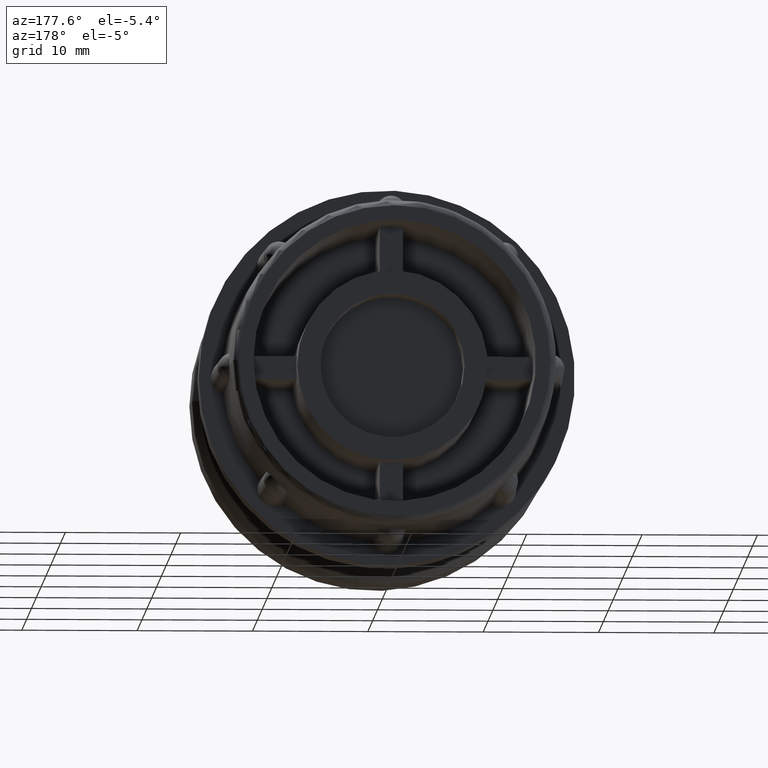
[diagram: clean part render]
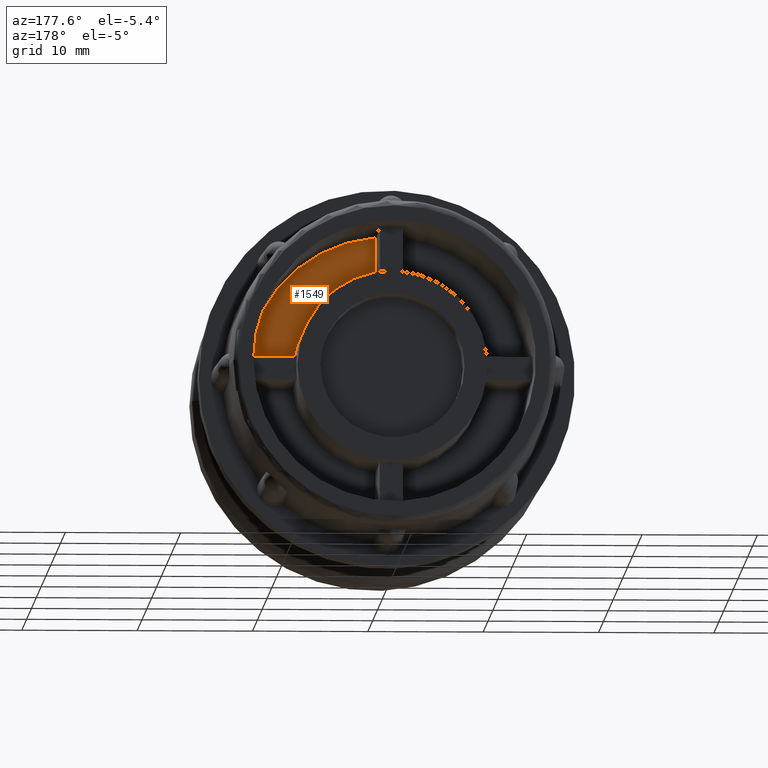
[diagram: same view with one face highlighted and labeled with its STEP entity id]
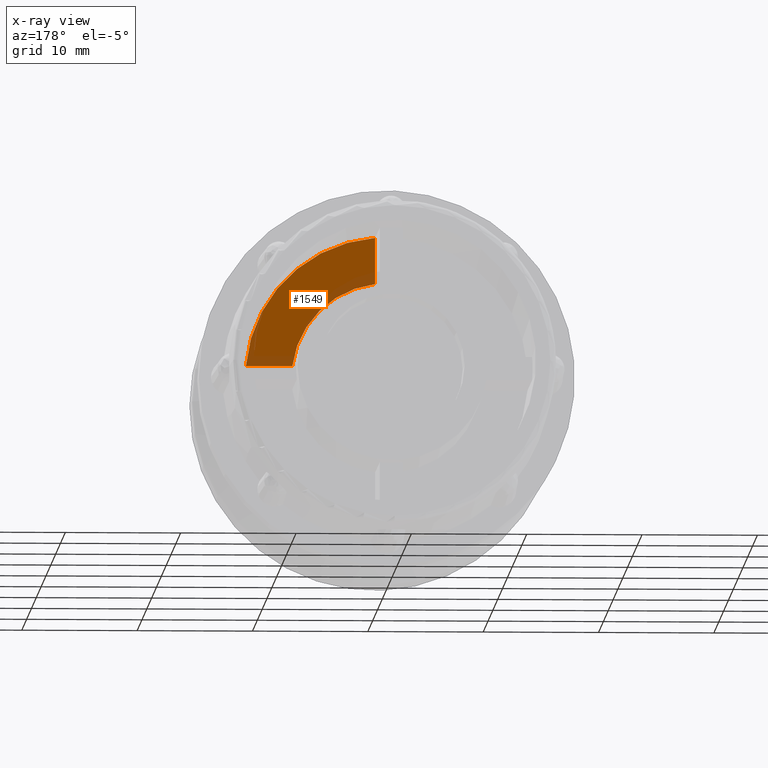
[diagram: x-ray of the same camera — body ghosted, the highlighted face saturated]
A machine part, auxiliary view. The second image highlights one B-rep face of the part: STEP entity #1549.
The next image is the same camera in x-ray: the body ghosted, the highlighted face saturated — about 17% of this face is hidden behind the body in this view.
In plain terms, the highlighted planar face has unit normal (0, -1, 0).
Its self-contained STEP definition (entity closure, byte-faithful):
#153=CIRCLE('',#1709,8.25);
#159=CIRCLE('',#1722,12.25);
#211=PLANE('',#1721);
#300=FACE_OUTER_BOUND('',#416,.T.);
#416=EDGE_LOOP('',(#1391,#1392,#1393,#1394));
#480=LINE('',#3343,#552);
#501=LINE('',#3412,#573);
#552=VECTOR('',#2054,4.01994576999518);
#573=VECTOR('',#2123,4.01994576999518);
#758=VERTEX_POINT('',#3339);
#759=VERTEX_POINT('',#3341);
#779=VERTEX_POINT('',#3395);
#782=VERTEX_POINT('',#3409);
#962=EDGE_CURVE('',#758,#759,#480,.T.);
#989=EDGE_CURVE('',#779,#759,#153,.T.);
#996=EDGE_CURVE('',#779,#782,#501,.T.);
#1001=EDGE_CURVE('',#758,#782,#159,.T.);
#1391=ORIENTED_EDGE('',*,*,#962,.T.);
#1392=ORIENTED_EDGE('',*,*,#989,.F.);
#1393=ORIENTED_EDGE('',*,*,#996,.T.);
#1394=ORIENTED_EDGE('',*,*,#1001,.F.);
#1549=ADVANCED_FACE('',(#300),#211,.F.);
#1709=AXIS2_PLACEMENT_3D('',#3397,#2103,#2104);
#1721=AXIS2_PLACEMENT_3D('',#3420,#2133,#2134);
#1722=AXIS2_PLACEMENT_3D('',#3421,#2135,#2136);
#2054=DIRECTION('',(-1.,-1.20292798384364E-16,5.1393129666811E-16));
#2103=DIRECTION('center_axis',(-1.20292798384364E-16,1.,0.));
#2104=DIRECTION('ref_axis',(-1.,-9.25185853854297E-17,0.));
#2123=DIRECTION('',(2.12293463654576E-16,2.55373748217182E-32,1.));
#2133=DIRECTION('center_axis',(1.20292798384364E-16,-1.,0.));
#2134=DIRECTION('ref_axis',(0.,0.,-1.));
#2135=DIRECTION('center_axis',(1.20292798384364E-16,-1.,0.));
#2136=DIRECTION('ref_axis',(-1.,-1.20292798384364E-16,0.));
#3339=CARTESIAN_POINT('',(12.2091154470748,4.00000000000001,1.));
#3341=CARTESIAN_POINT('',(8.1891696770796,4.00000000000001,1.));
#3343=CARTESIAN_POINT('',(7.03626962054411,4.00000000000001,1.00000000000001));
#3395=CARTESIAN_POINT('',(0.999999999999994,4.00000000000001,8.1891696770796));
#3397=CARTESIAN_POINT('Origin',(2.77463201204956E-16,4.00000000000001,0.));
#3409=CARTESIAN_POINT('',(0.999999999999994,4.00000000000001,12.2091154470748));
#3412=CARTESIAN_POINT('',(0.999999999999993,4.00000000000001,4.0945848385398));
#3420=CARTESIAN_POINT('Origin',(7.48230704736538E-16,4.00000000000001,0.));
#3421=CARTESIAN_POINT('Origin',(1.38768622583011E-15,4.00000000000001,0.));